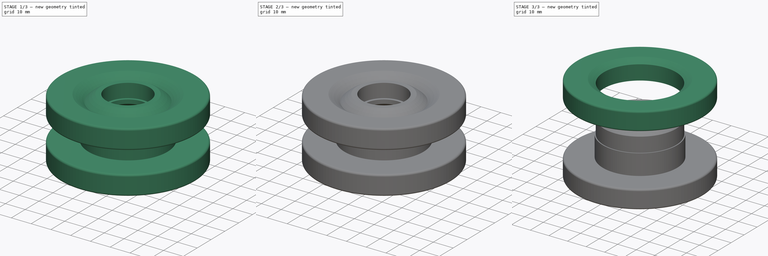
[diagram: build sequence overview — one tinted view per stage of 3, left to right]
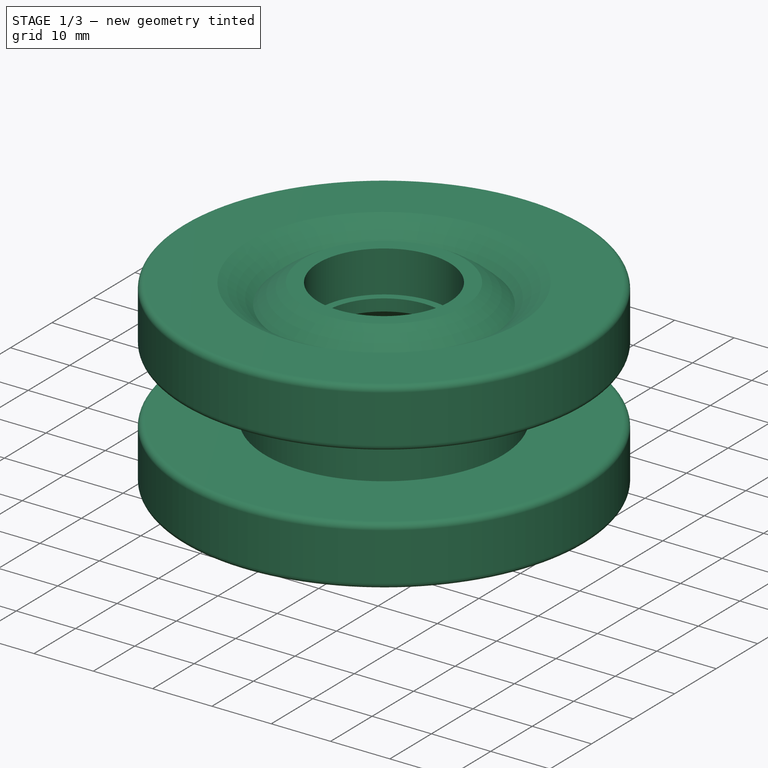
[diagram: stage 1 of 3 — iso view after this stage's code; geometry added in this stage tinted green]
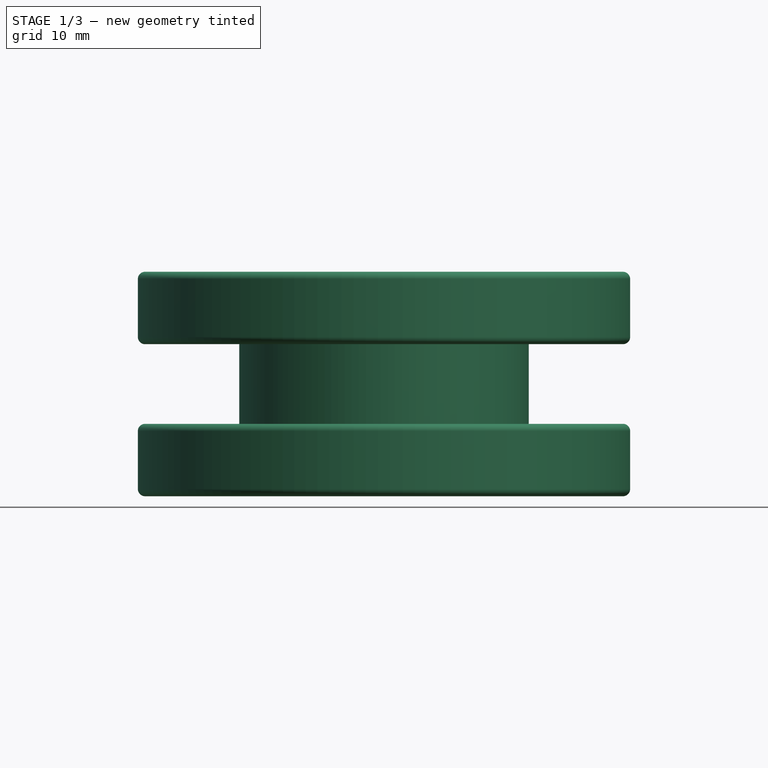
[diagram: stage 1 of 3 — front view after this stage's code; geometry added in this stage tinted green]
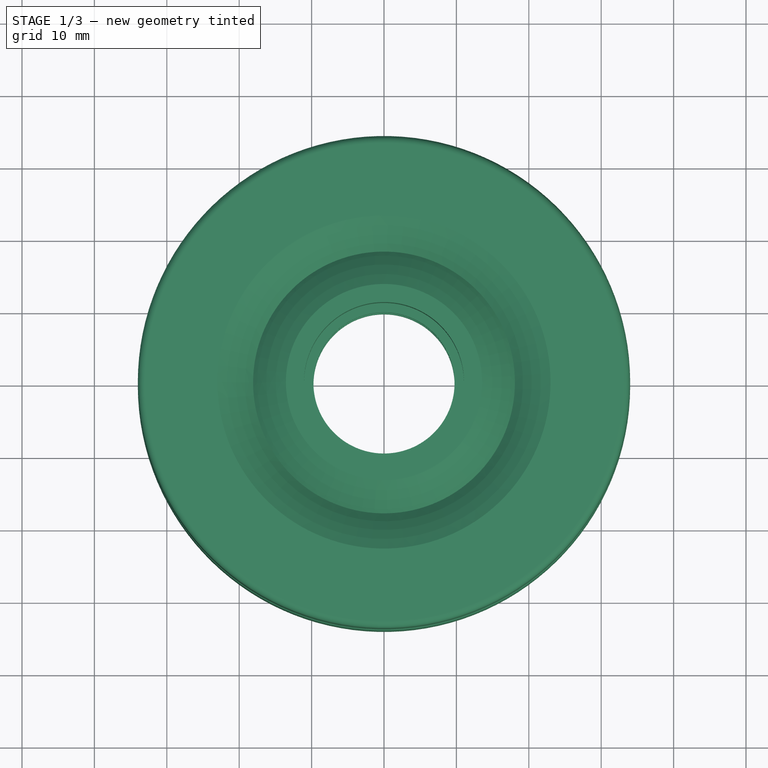
[diagram: stage 1 of 3 — top view after this stage's code; geometry added in this stage tinted green]
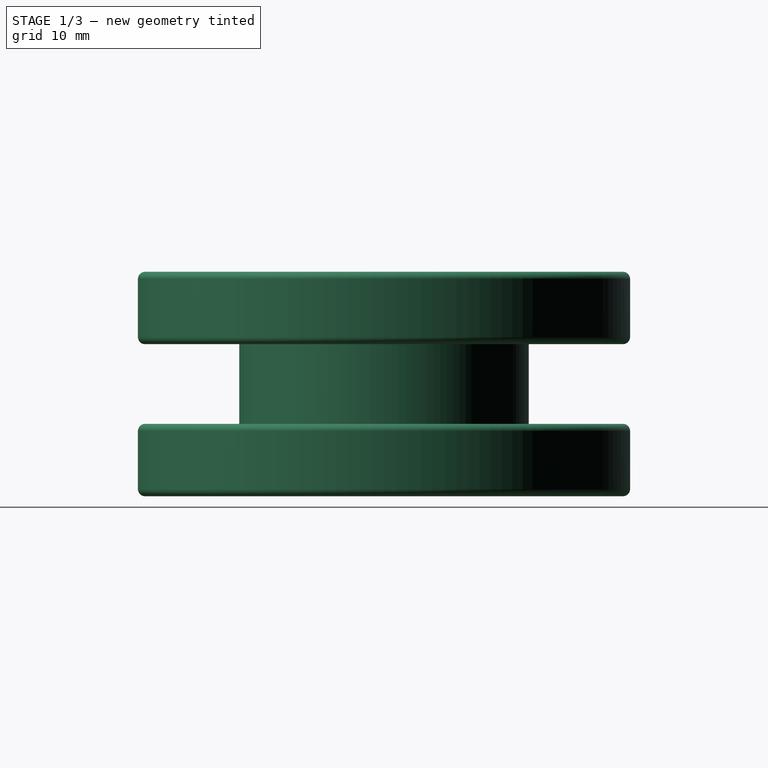
[diagram: stage 1 of 3 — right view after this stage's code; geometry added in this stage tinted green]
FCSTD DOCUMENT  (FreeCAD 0.20R27319 (Git))
Label: Rolle
License: All rights reserved
LicenseURL: http://en.wikipedia.org/wiki/All_rights_reserved
objects: Sketcher::SketchObject×3, Part::FeaturePython×3, PartDesign::Pad×2, PartDesign::Body×2, PartDesign::Revolution×1, PartDesign::Fillet×1, App::DocumentObjectGroup×1
note: 16 computed .brp shape members not serialized (recipe doc carries the construction recipe); baked Part::Feature solids carry a one-line shape summary decoded from their .brp

FEATURE [Sketcher::SketchObject] Sketch002
  FullyConstrained = true
  MapMode = 5
  Placement = pos=(0,0,0) rot=(1,0,0;1.5708rad)
  Support = -> [XZ_Plane002]
  sketch-geometry (25):
    g0: LineSegment StartX=-11.05 StartY=-15.5 StartZ=0 EndX=-13.55 EndY=-15.5 EndZ=0
    g1: LineSegment StartX=-13.55 StartY=15.5 StartZ=0 EndX=-11.05 EndY=15.5 EndZ=0
    g2: LineSegment StartX=-11.05 StartY=15.5 StartZ=0 EndX=-11.05 EndY=8.5 EndZ=0
    g3: LineSegment StartX=-11.05 StartY=8.5 StartZ=0 EndX=-9.75 EndY=8.5 EndZ=0
    g4: LineSegment StartX=-9.75 StartY=8.5 StartZ=0 EndX=-9.75 EndY=6.5 EndZ=0
    g5: LineSegment StartX=-9.75 StartY=6.5 StartZ=0 EndX=-13.75 EndY=2.5 EndZ=0
    g6: LineSegment StartX=-13.75 StartY=2.5 StartZ=0 EndX=-13.75 EndY=-2.5 EndZ=0
    g7: LineSegment StartX=-13.75 StartY=-2.5 StartZ=0 EndX=-9.75 EndY=-6.5 EndZ=0
    g8: LineSegment StartX=-9.75 StartY=-6.5 StartZ=0 EndX=-9.75 EndY=-8.5 EndZ=0
    g9: LineSegment StartX=-9.75 StartY=-8.5 StartZ=0 EndX=-11.05 EndY=-8.5 EndZ=0
    g10: LineSegment StartX=-11.05 StartY=-8.5 StartZ=0 EndX=-11.05 EndY=-15.5 EndZ=0
    g11: ArcOfCircle CenterX=-5.55 CenterY=6e-16 CenterZ=0 NormalX=0 NormalY=0 NormalZ=1 AngleXU=0 Radius=17.4428 StartAngle=2.04726 EndAngle=2.37237
    g12: GeomPoint X=11.05 Y=-15.5 Z=0
    g13: GeomPoint X=9.75 Y=-8.5 Z=0
    g14: ArcOfCircle CenterX=-5.55 CenterY=6e-16 CenterZ=0 NormalX=0 NormalY=0 NormalZ=1 AngleXU=0 Radius=17.4428 StartAngle=3.91082 EndAngle=4.23592
    g15: LineSegment StartX=-20 StartY=5.5 StartZ=0 EndX=-34 EndY=5.5 EndZ=0
    g16: LineSegment StartX=-34 StartY=5.5 StartZ=0 EndX=-34 EndY=15.5 EndZ=0
    g17: LineSegment StartX=-34 StartY=15.5 StartZ=0 EndX=-23 EndY=15.5 EndZ=0
    g18: LineSegment StartX=-23 StartY=-15.5 StartZ=0 EndX=-34 EndY=-15.5 EndZ=0
    g19: LineSegment StartX=-34 StartY=-15.5 StartZ=0 EndX=-34 EndY=-5.5 EndZ=0
    g20: LineSegment StartX=-34 StartY=-5.5 StartZ=0 EndX=-20 EndY=-5.5 EndZ=0
    g21: LineSegment StartX=-20 StartY=-5.5 StartZ=0 EndX=-20 EndY=5.5 EndZ=0
    g22: ArcOfCircle CenterX=-30 CenterY=-2e-16 CenterZ=0 NormalX=0 NormalY=0 NormalZ=1 AngleXU=0 Radius=17.0074 StartAngle=5.13658 EndAngle=5.48887
    g23: GeomPoint X=34 Y=15.5 Z=0
    g24: ArcOfCircle CenterX=-30 CenterY=-2e-16 CenterZ=0 NormalX=0 NormalY=0 NormalZ=1 AngleXU=0 Radius=17.0074 StartAngle=0.794319 EndAngle=1.1466
  constraints (69):
    c: Horizontal(g0)
    c: Horizontal(g1)
    c: Coincident(g1,g2)
    c: Coincident(g2,g3)
    c: Horizontal(g3)
    c: Coincident(g3,g4)
    c: Vertical(g4)
    c: Coincident(g4,g5)
    c: Coincident(g5,g6)
    c: Coincident(g6,g7)
    c: Coincident(g7,g8)
    c: Vertical(g8)
    c: Coincident(g8,g9)
    c: Horizontal(g9)
    c: Coincident(g9,g10)
    c: Coincident(g10,g0)
    c: Coincident(g11,g1)
    c: Coincident(g14,g0)
    c: Vertical(g2)
    c: Vertical(g10)
    c: Equal(g10,g2)
    c: Equal(g3,g9)
    c: Equal(g8,g4)
    c: Equal(g1,g0)
    c: Symmetric(g0,g1,g-1)
    c: Symmetric(g6,g5,g-1)
    c: Angle(g7) = -0.785398
    c: DistanceX(g0,g11) = 8
    c: DistanceY(g10,g10) = 7
    c: Symmetric(g8,g13,g-2)
    c: Symmetric(g12,g0,g-2)
    c: DistanceX(g0,g12) = 22.1
    c: DistanceX(g8,g13) = 19.5
    c: DistanceX(g9,g9) = 1.3
    c: DistanceY(g4,g4) = 2
    c: DistanceY(g6,g6) = 5
    c: DistanceX(g1,g1) = 2.5
    c: Equal(g11,g14)
    c: Coincident(g11,g14)
    c: Horizontal(g15)
    c: Coincident(g15,g16)
    c: Vertical(g16)
    c: Coincident(g16,g17)
    c: Horizontal(g17)
    c: Horizontal(g18)
    c: Coincident(g18,g19)
    c: Vertical(g19)
    c: Coincident(g19,g20)
    c: Horizontal(g20)
    c: Coincident(g20,g21)
    c: Coincident(g21,g15)
    c: Symmetric(g17,g18,g-1)
    c: Symmetric(g15,g20,g-1)
    c: PointOnObject(g19,g16)
    c: Coincident(g24,g17)
    c: Coincident(g22,g18)
    c: DistanceX(g22,g18) = 7
    c: DistanceY(g18,g16) = 31
    c: DistanceY(g19,g15) = 11
    c: DistanceX(g19,g20) = 14
    c: DistanceX(g17,g17) = 11
    c: Symmetric(g23,g16,g-2)
    c: DistanceX(g16,g23) = 68
    c: Equal(g22,g24)
    c: Coincident(g22,g24)
    c: Coincident(g22,g14)
    c: Coincident(g24,g11)
    c: DistanceX(g11) = -18.0817
    c: Horizontal(g0,g18)
FEATURE [PartDesign::Revolution] Revolution001
  Angle = 360
  Axis = (0,-2e-16,1)
  Base = (0,0,0)
  Placement = pos=(0,0,0) rot=(1,0,0;1.5708rad)
  Profile = -> Sketch002
  ReferenceAxis = -> Sketch002 [V_Axis]
FEATURE [PartDesign::Body] Body004  label="splitter"
  Group = -> [Sketch005,Pad001,Sketch006,Pad002]
  Origin = -> Origin004
  Tip = -> Pad002
FEATURE [PartDesign::Fillet] Fillet
  Base = -> Revolution001 [Edge31,Edge30,Edge25,Edge24,Edge17]
  BaseFeature = -> Revolution001
  Placement = pos=(0,0,0) rot=(1,0,0;1.5708rad)
  Radius = 1
  SupportTransform = false
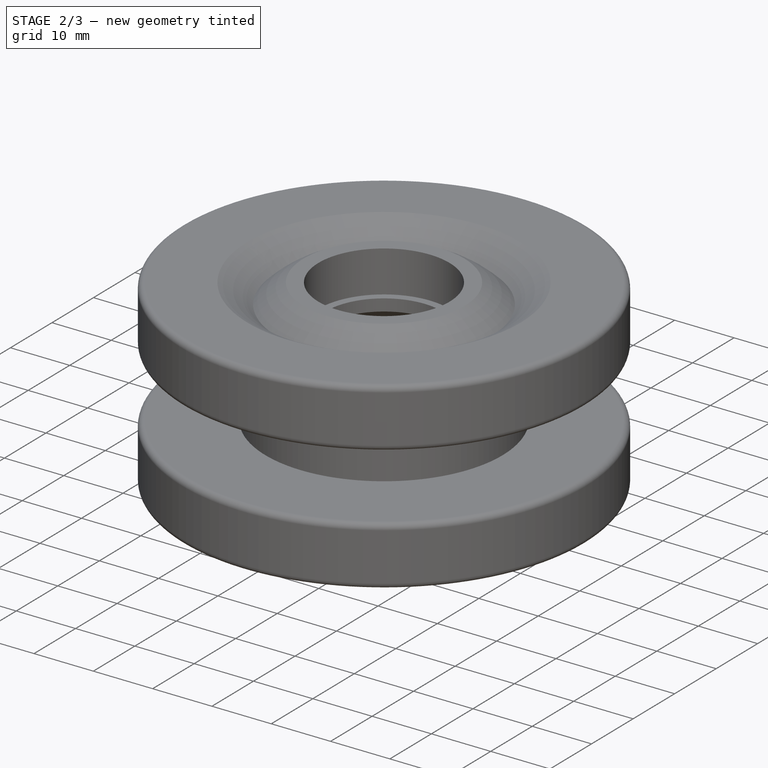
[diagram: stage 2 of 3 — iso view after this stage's code; geometry added in this stage tinted green]
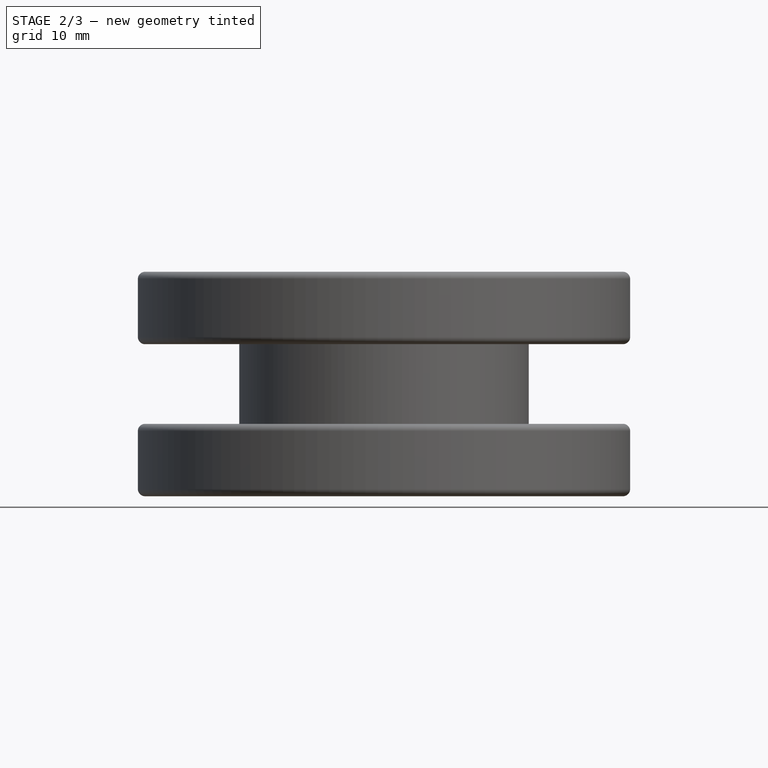
[diagram: stage 2 of 3 — front view after this stage's code; geometry added in this stage tinted green]
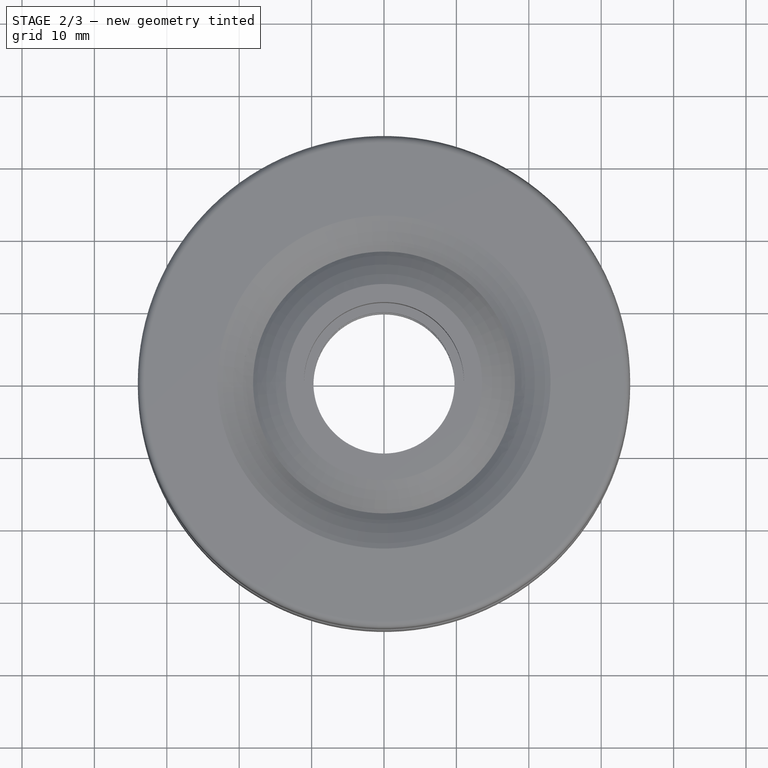
[diagram: stage 2 of 3 — top view after this stage's code; geometry added in this stage tinted green]
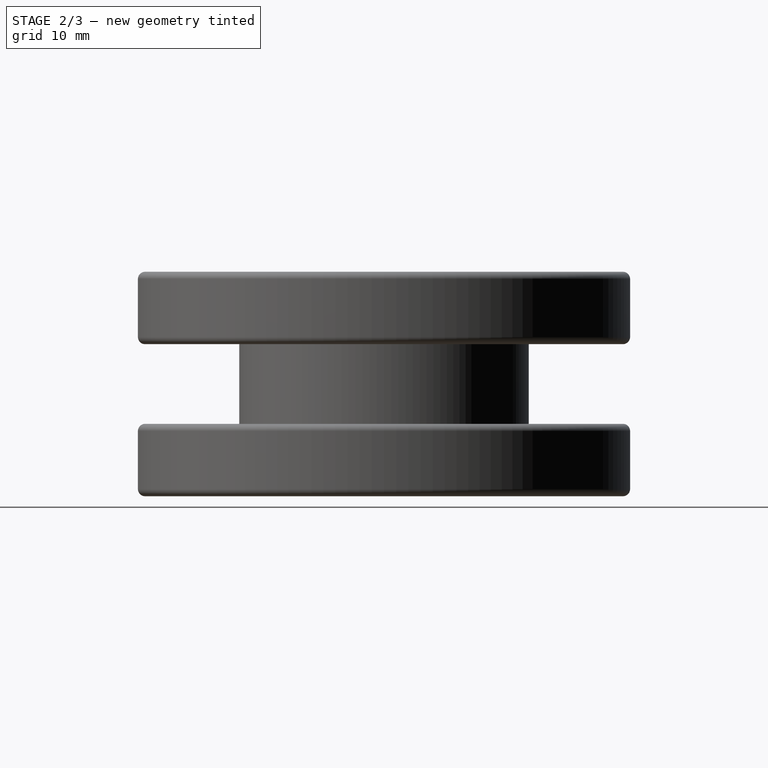
[diagram: stage 2 of 3 — right view after this stage's code; geometry added in this stage tinted green]
FEATURE [Sketcher::SketchObject] Sketch005
  AttachmentOffset = pos=(0,0,5.5) rot=(0,0,1;0rad)
  FullyConstrained = false
  MapMode = 5
  Placement = pos=(0,0,5.5) rot=(0,0,1;0rad)
  Support = -> [XY_Plane004]
  sketch-geometry (1):
    g0: Circle CenterX=0 CenterY=0 CenterZ=0 NormalX=0 NormalY=0 NormalZ=1 AngleXU=0 Radius=39.0034
  constraints (1):
    c: Coincident(g0,g-1)
FEATURE [PartDesign::Pad] Pad001
  Direction = (0,0,1)
  Length = 30
  Length2 = 10
  Profile = -> Sketch005
  ReferenceAxis = -> Sketch005 [N_Axis]
  Reversed = true
  Type = 0
FEATURE [Sketcher::SketchObject] Sketch006
  FullyConstrained = true
  MapMode = 5
  Placement = pos=(0,0,5.5) rot=(0,0,1;0rad)
  Support = -> [Pad001]
  sketch-geometry (1):
    g0: Circle CenterX=0 CenterY=0 CenterZ=0 NormalX=0 NormalY=0 NormalZ=1 AngleXU=0 Radius=19.5
  constraints (2):
    c: Coincident(g0,g-1)
    c: Diameter(g0) = 39
FEATURE [PartDesign::Pad] Pad002
  BaseFeature = -> Pad001
  Direction = (0,0,1)
  Length = 20
  Length2 = 10
  Profile = -> Sketch006
  ReferenceAxis = -> Sketch006 [N_Axis]
  Type = 0
FEATURE [PartDesign::Body] Body001  label="Rolle"
  Group = -> [Revolution001,Fillet]
  Origin = -> Origin001
  Tip = -> Fillet
FEATURE [Part::FeaturePython] Slice  # WARN: FeaturePython — macro-defined, semantics opaque (R4)
  Base = -> Body001
  Mode = 1
  Tolerance = 0
  Tools = -> [Body004]
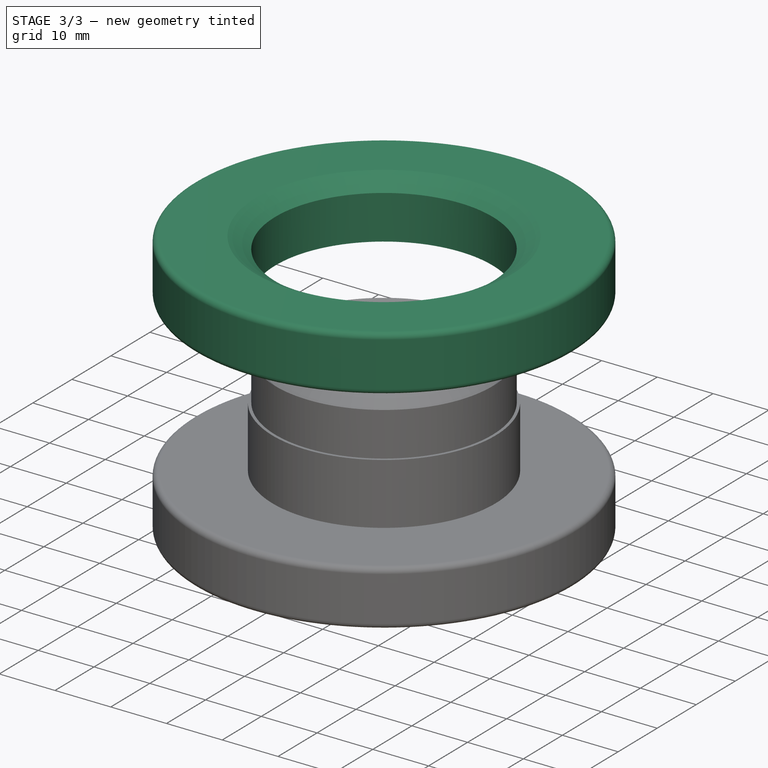
[diagram: stage 3 of 3 — iso view after this stage's code; geometry added in this stage tinted green]
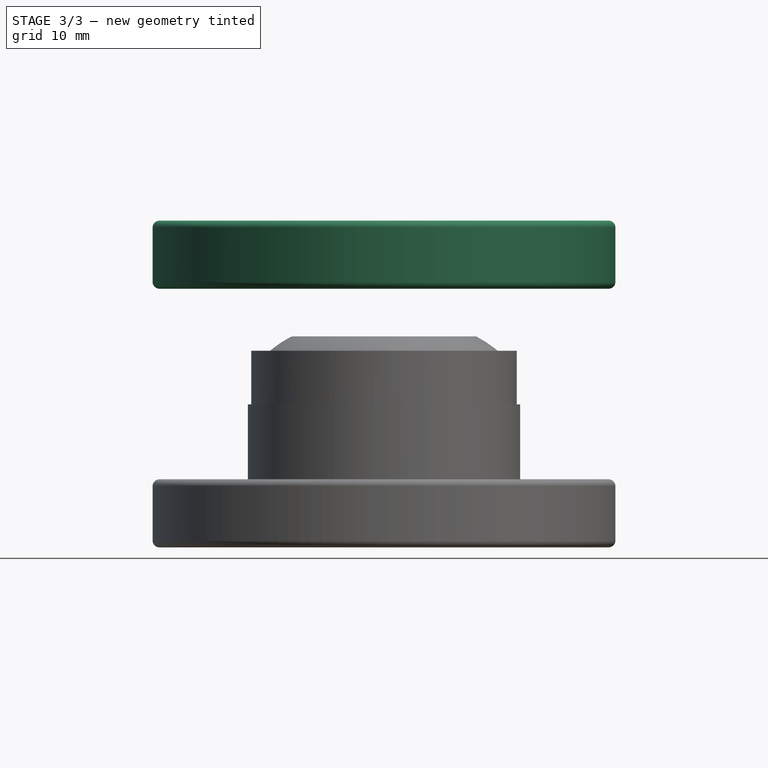
[diagram: stage 3 of 3 — front view after this stage's code; geometry added in this stage tinted green]
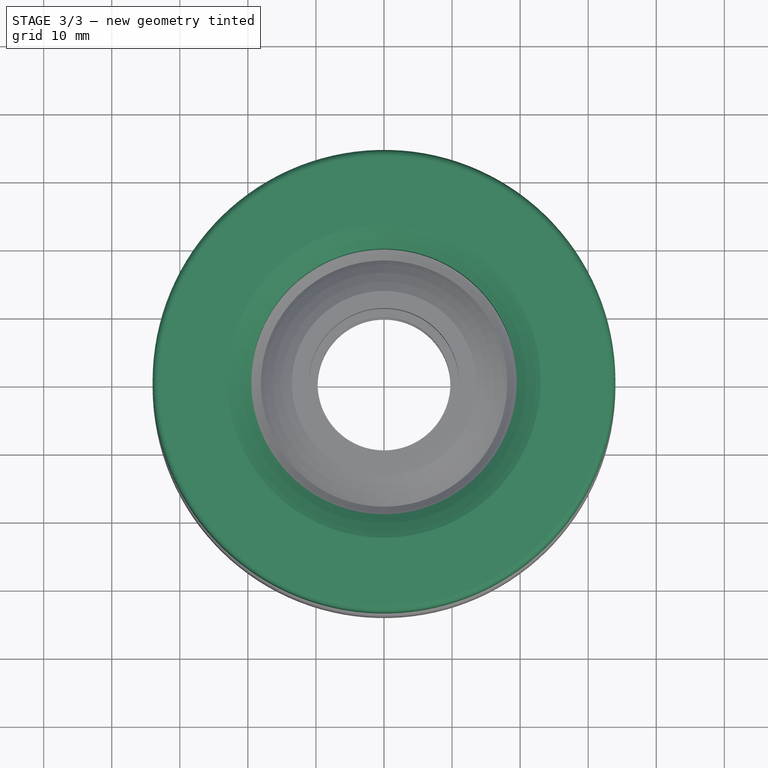
[diagram: stage 3 of 3 — top view after this stage's code; geometry added in this stage tinted green]
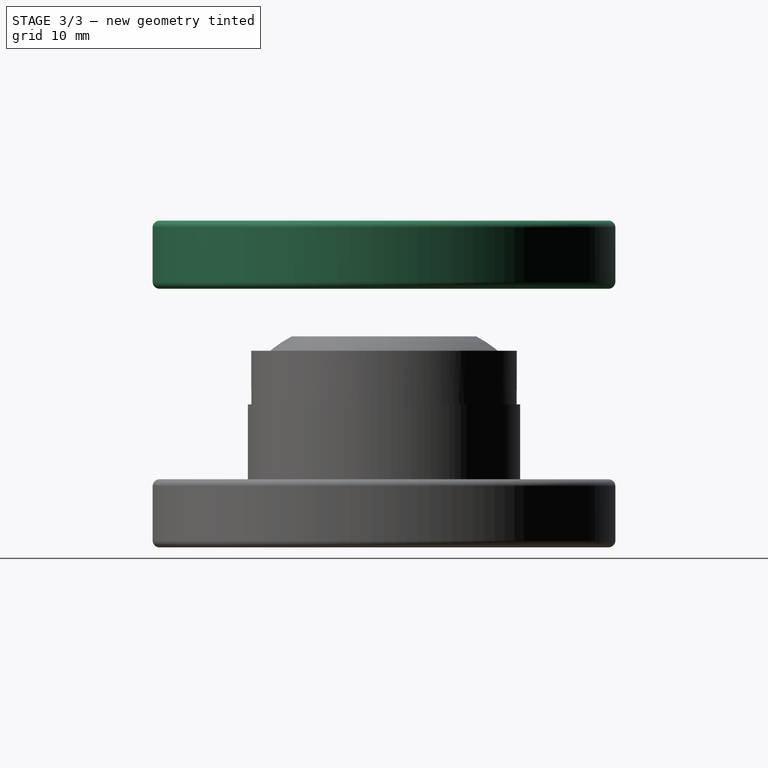
[diagram: stage 3 of 3 — right view after this stage's code; geometry added in this stage tinted green]
FEATURE [Part::FeaturePython] Slice_child0  label="68mm_hub_one_rim"  # WARN: FeaturePython — macro-defined, semantics opaque (R4)
  Base = -> Slice
  FilterType = 1
  Invert = false
  OverrideMaxVal = 0
  WindowFrom = 80
  WindowTo = 100
  items = 0
FEATURE [Part::FeaturePython] Slice_child1  label="68mm_second_rim"  # WARN: FeaturePython — macro-defined, semantics opaque (R4)
  Base = -> Slice
  FilterType = 1
  Invert = false
  OverrideMaxVal = 0
  Placement = pos=(0,0,17) rot=(0,0,1;0rad)
  WindowFrom = 80
  WindowTo = 100
  items = 1
FEATURE [App::DocumentObjectGroup] GrExplode_Slice  label="Exploded Slice"
  Group = -> [Slice_child0,Slice_child1]
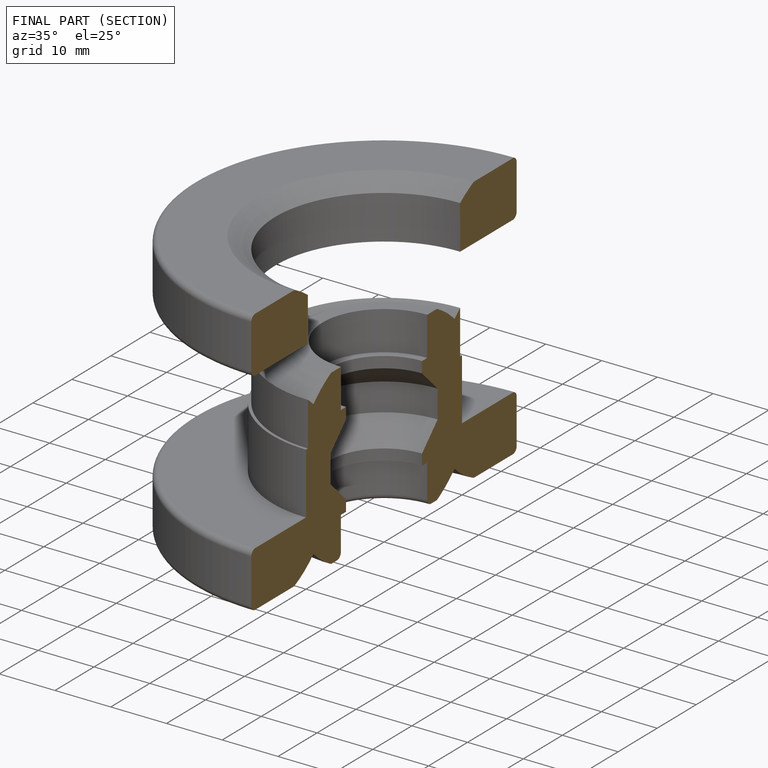
[diagram: finished part — half-section view (interior)]
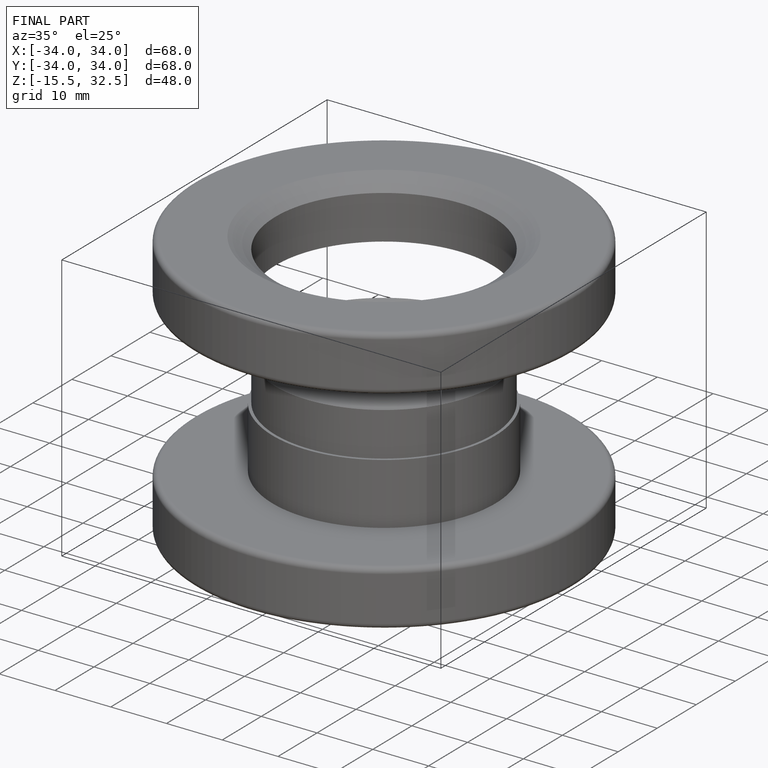
[diagram: finished part — iso view with bounding-box wireframe]
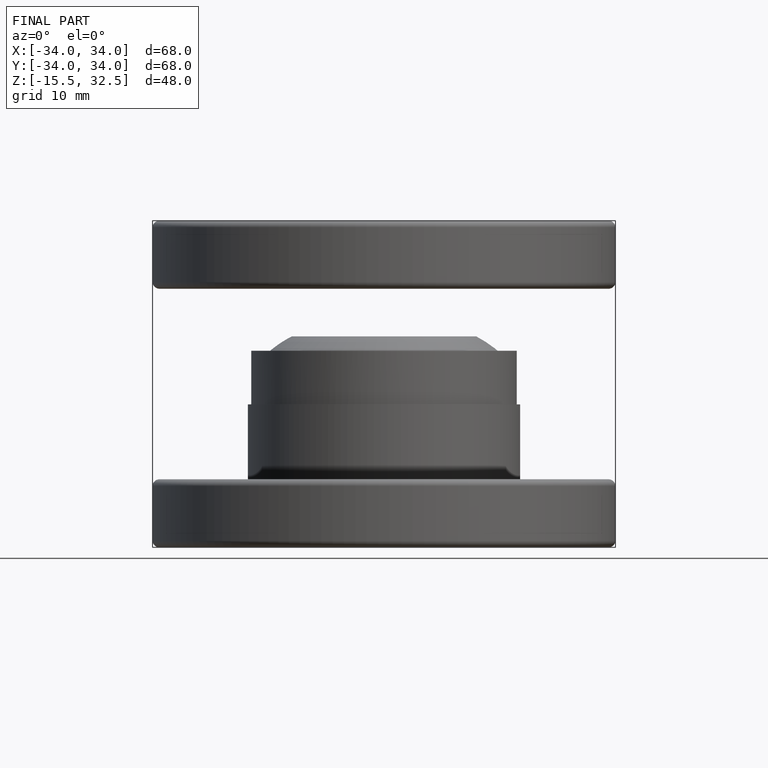
[diagram: finished part — front view with bounding-box wireframe]
